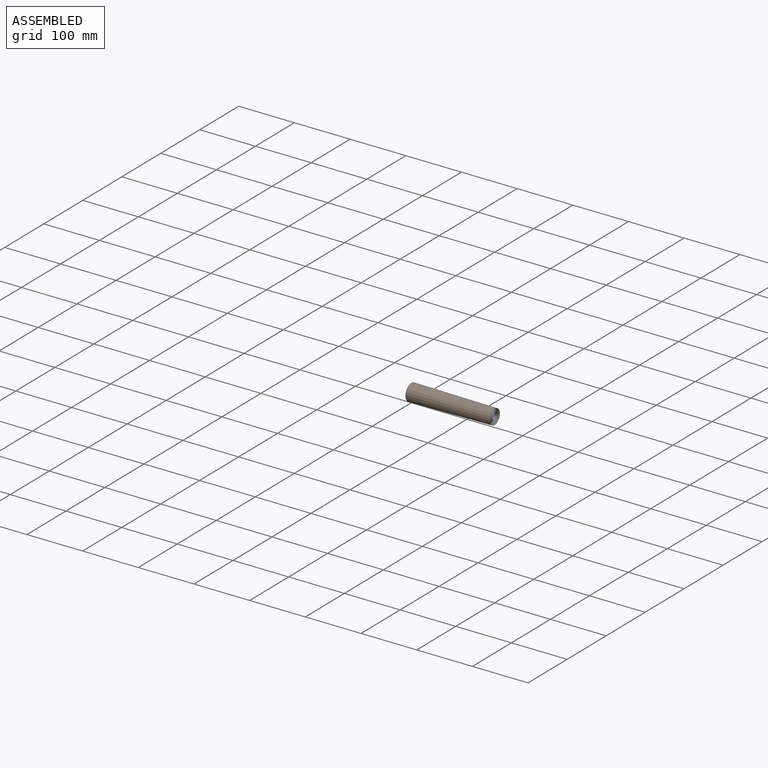
[diagram: assembled view]
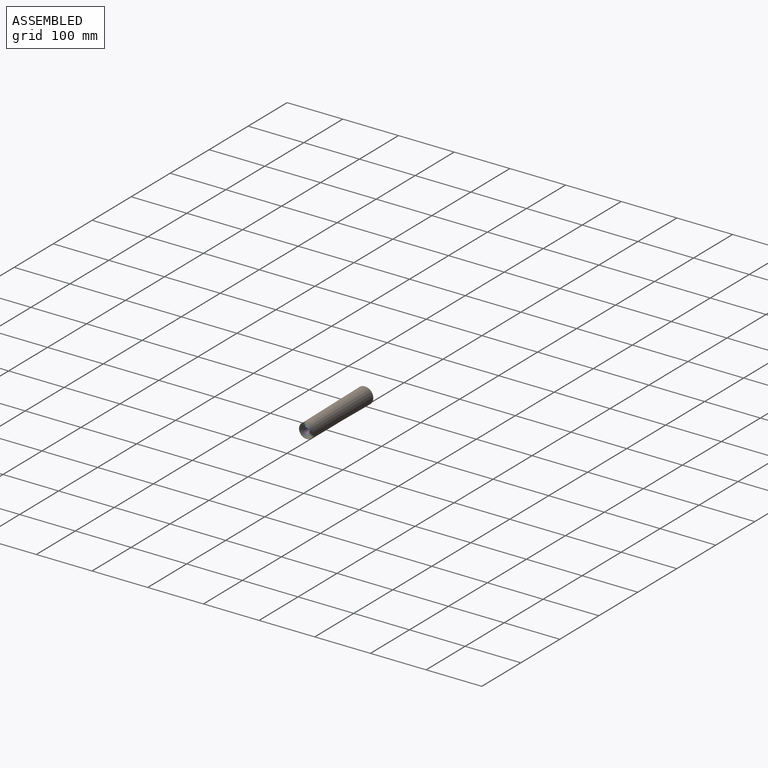
[diagram: assembled view, second angle]
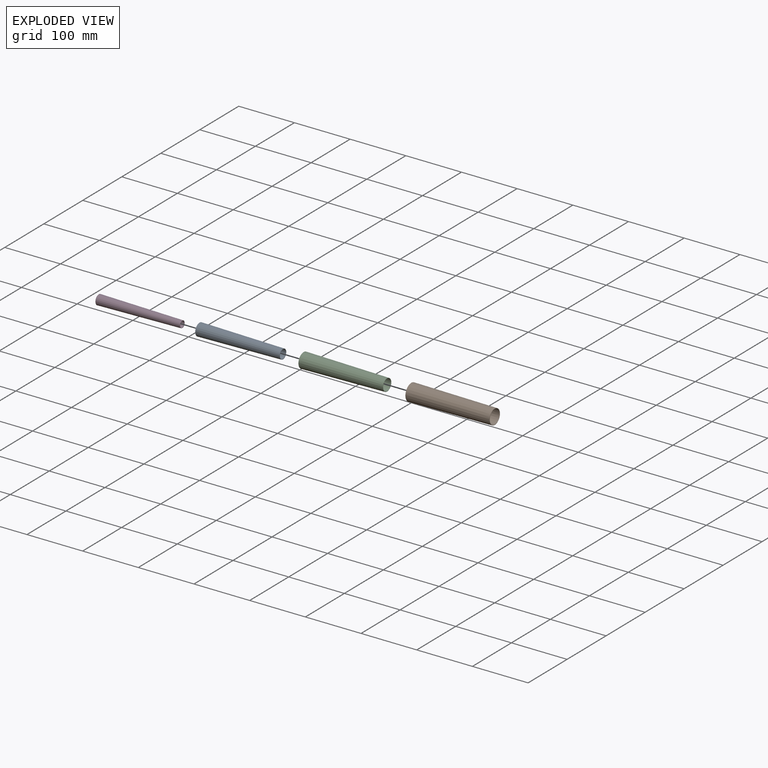
[diagram: exploded view]
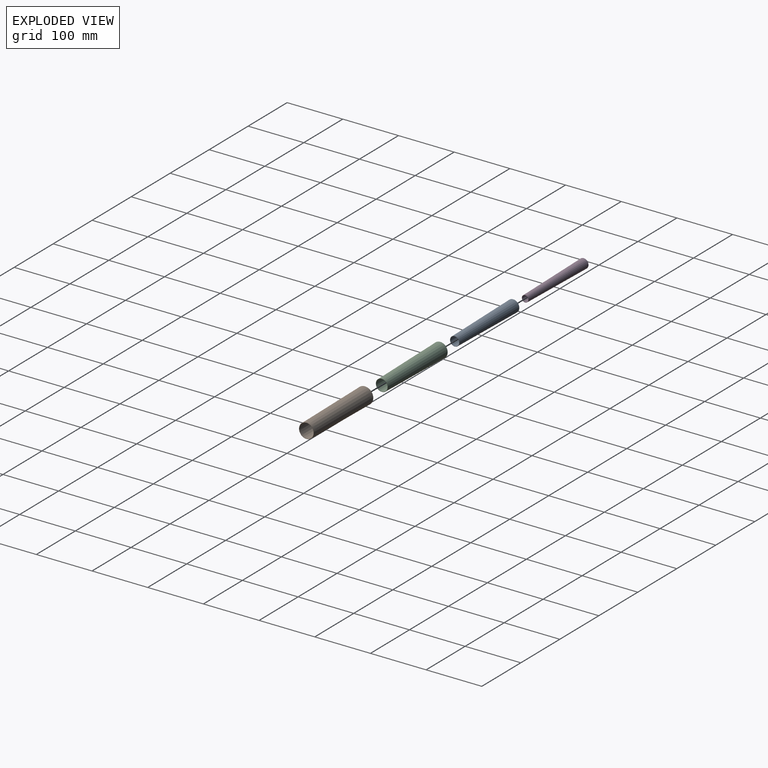
[diagram: exploded view, second angle]
ASSEMBLY  parts=4 mates=3
PART A: 4 faces, bbox 150x21.9x21.9 mm
  f0: cone r=7.96mm half-angle=1deg, axis (-1,0,0), area 8681.4mm2, adj f1,f3
  f1: plane 16.92x16.92mm, normal (1,0,0), area 25.8mm2, adj f0,f2
  f2: cone r=10.96mm half-angle=1deg, axis (-1,0,0), area 9152.7mm2, adj f1,f3
  f3: plane 21.92x21.92mm, normal (-1,0,0), area 33.6mm2, adj f0,f2
PART B: 4 faces, bbox 150x30x30 mm
  f0: plane 30x30mm, normal (-1,0,0), area 46.3mm2, adj f1,f3
  f1: cone r=14.5mm half-angle=0.6deg, axis (-1,0,0), area 12865.6mm2, adj f0,f2
  f2: plane 26.6x26.6mm, normal (1,0,0), area 41mm2, adj f1,f3
  f3: cone r=15mm half-angle=0.6deg, axis (-1,0,0), area 13336.9mm2, adj f0,f2
PART C: 4 faces, bbox 150x26.5x26.5 mm
  f0: plane 26.52x26.52mm, normal (-1,0,0), area 40.9mm2, adj f1,f3
  f1: cone r=12.76mm half-angle=1deg, axis (-1,0,0), area 10849.4mm2, adj f0,f2
  f2: plane 21.52x21.52mm, normal (1,0,0), area 33mm2, adj f1,f3
  f3: cone r=13.26mm half-angle=1deg, axis (-1,0,0), area 11320.7mm2, adj f0,f2
PART D: 4 faces, bbox 150x17.3x17.3 mm
  f0: cone r=5.56mm half-angle=1deg, axis (-1,0,0), area 6466.4mm2, adj f1,f3
  f1: plane 12.12x12.12mm, normal (1,0,0), area 18.3mm2, adj f0,f2
  f2: cone r=8.66mm half-angle=1deg, axis (-1,0,0), area 6937.7mm2, adj f1,f3
  f3: plane 17.32x17.32mm, normal (-1,0,0), area 26.4mm2, adj f0,f2
PLACE A t=(0,0,-64.4)mm
PLACE B t=(0,0,5.2)mm
PLACE C t=(0,0,-39.46)mm
PLACE D t=(0,0,-124.68)mm
MATE pin_slot D.f0 <-> A.f0  axis (1,0,0) through (150,0,5.2)mm
MATE pin_slot A.f0 <-> C.f1  axis (1,0,0) through (150,0,5.2)mm
MATE pin_slot C.f1 <-> B.f1  axis (1,0,0) through (150,0,5.2)mm
